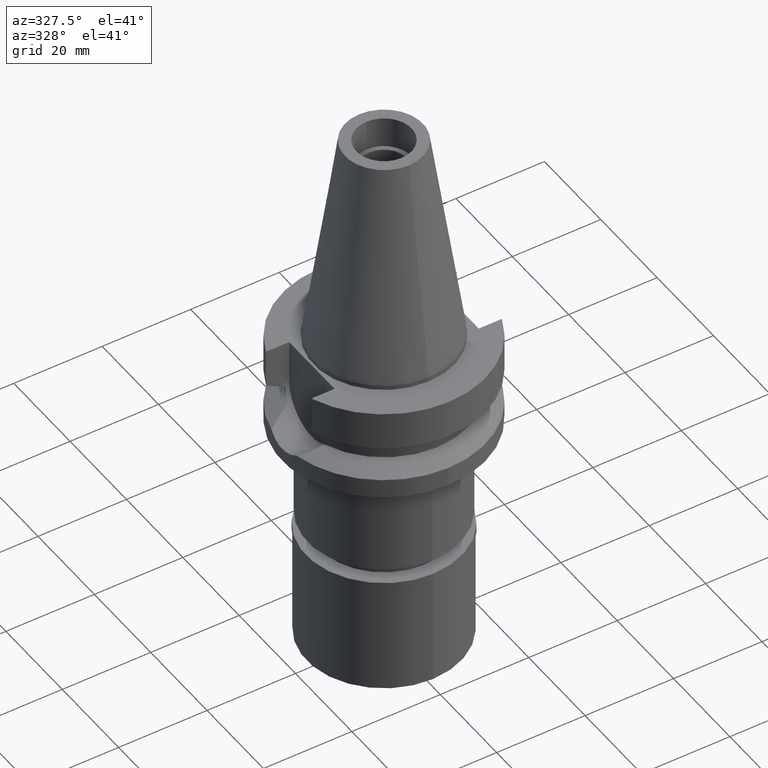
[diagram: clean part render]
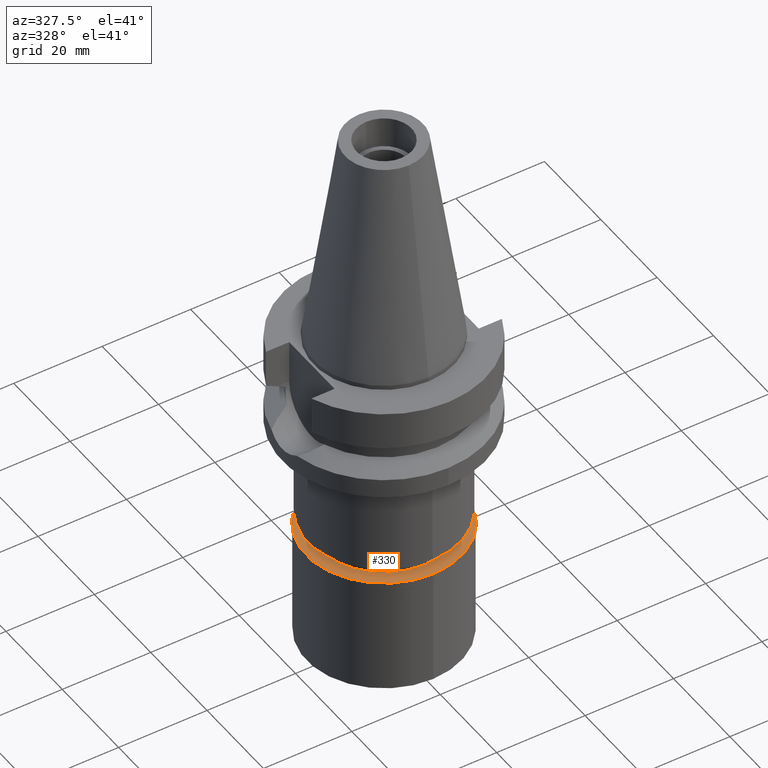
[diagram: same view with one face highlighted and labeled with its STEP entity id]
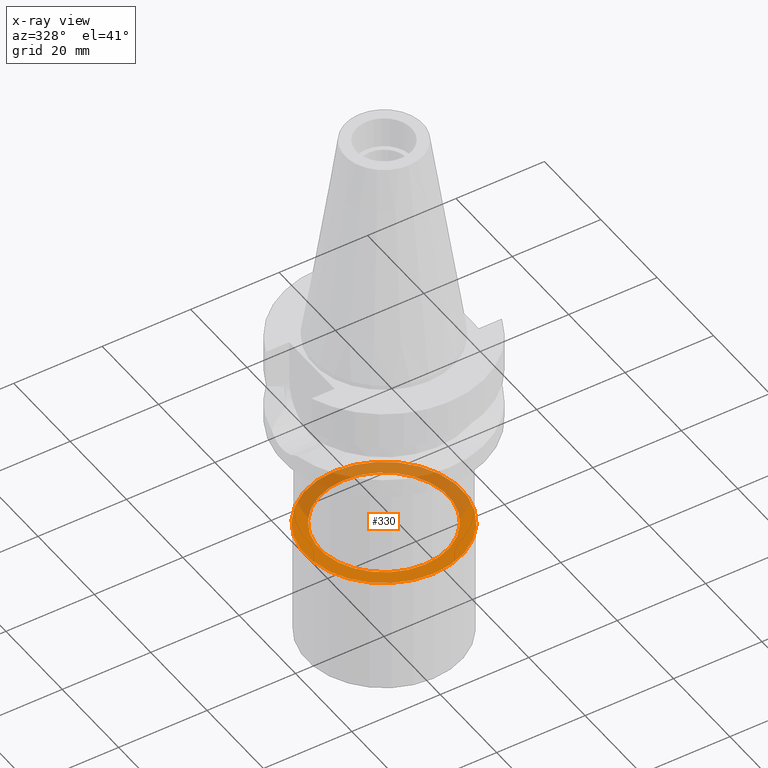
[diagram: x-ray of the same camera — body ghosted, the highlighted face saturated]
A machine part, auxiliary view. The second image highlights one B-rep face of the part: STEP entity #330.
The next image is the same camera in x-ray: the body ghosted, the highlighted face saturated — about 43% of this face is hidden behind the body in this view.
In plain terms, the highlighted planar face has unit normal (0, 0, -1).
Its self-contained STEP definition (entity closure, byte-faithful):
#113 = CARTESIAN_POINT ( 'NONE',  ( 0.0000000000000000000, 0.0000000000000000000, 0.0000000000000000000 ) ) ;
#177 = CARTESIAN_POINT ( 'NONE',  ( 0.0000000000000000000, -14.50000000000000000, 0.0000000000000000000 ) ) ;
#194 = FACE_BOUND ( 'NONE', #2177, .T. ) ;
#243 = DIRECTION ( 'NONE',  ( 0.0000000000000000000, 0.0000000000000000000, -1.000000000000000000 ) ) ;
#280 = AXIS2_PLACEMENT_3D ( 'NONE', #1407, #243, #926 ) ;
#328 = ORIENTED_EDGE ( 'NONE', *, *, #798, .F. ) ;
#330 = ADVANCED_FACE ( 'NONE', ( #2773, #194 ), #2538, .F. ) ;
#350 = CARTESIAN_POINT ( 'NONE',  ( 0.0000000000000000000, -17.64999999999999858, 0.0000000000000000000 ) ) ;
#394 = DIRECTION ( 'NONE',  ( 0.0000000000000000000, 0.0000000000000000000, 1.000000000000000000 ) ) ;
#435 = DIRECTION ( 'NONE',  ( 0.0000000000000000000, 0.0000000000000000000, -1.000000000000000000 ) ) ;
#688 = VERTEX_POINT ( 'NONE', #2706 ) ;
#798 = EDGE_CURVE ( 'NONE', #2563, #1265, #1203, .T. ) ;
#841 = DIRECTION ( 'NONE',  ( 0.0000000000000000000, -1.000000000000000000, 0.0000000000000000000 ) ) ;
#912 = DIRECTION ( 'NONE',  ( 0.0000000000000000000, -1.000000000000000000, 0.0000000000000000000 ) ) ;
#926 = DIRECTION ( 'NONE',  ( 0.0000000000000000000, -1.000000000000000000, 0.0000000000000000000 ) ) ;
#928 = DIRECTION ( 'NONE',  ( 0.0000000000000000000, 0.0000000000000000000, 1.000000000000000000 ) ) ;
#1147 = CARTESIAN_POINT ( 'NONE',  ( 0.0000000000000000000, 0.0000000000000000000, 0.0000000000000000000 ) ) ;
#1203 = CIRCLE ( 'NONE', #2853, 17.64999999999999858 ) ;
#1265 = VERTEX_POINT ( 'NONE', #350 ) ;
#1388 = CARTESIAN_POINT ( 'NONE',  ( 0.0000000000000000000, 0.0000000000000000000, 0.0000000000000000000 ) ) ;
#1401 = CIRCLE ( 'NONE', #2958, 14.50000000000000000 ) ;
#1403 = CIRCLE ( 'NONE', #1686, 17.64999999999999858 ) ;
#1407 = CARTESIAN_POINT ( 'NONE',  ( 0.0000000000000000000, 0.0000000000000000000, 0.0000000000000000000 ) ) ;
#1468 = EDGE_CURVE ( 'NONE', #688, #2354, #1401, .T. ) ;
#1500 = AXIS2_PLACEMENT_3D ( 'NONE', #2457, #394, #841 ) ;
#1528 = DIRECTION ( 'NONE',  ( 0.0000000000000000000, 0.0000000000000000000, -1.000000000000000000 ) ) ;
#1686 = AXIS2_PLACEMENT_3D ( 'NONE', #1388, #435, #912 ) ;
#1801 = EDGE_CURVE ( 'NONE', #1265, #2563, #1403, .T. ) ;
#2070 = DIRECTION ( 'NONE',  ( 0.0000000000000000000, 1.000000000000000000, 0.0000000000000000000 ) ) ;
#2101 = ORIENTED_EDGE ( 'NONE', *, *, #1468, .F. ) ;
#2121 = ORIENTED_EDGE ( 'NONE', *, *, #2723, .F. ) ;
#2177 = EDGE_LOOP ( 'NONE', ( #2101, #2121 ) ) ;
#2354 = VERTEX_POINT ( 'NONE', #177 ) ;
#2397 = DIRECTION ( 'NONE',  ( 0.0000000000000000000, 1.000000000000000000, 0.0000000000000000000 ) ) ;
#2457 = CARTESIAN_POINT ( 'NONE',  ( 0.0000000000000000000, 0.0000000000000000000, 0.0000000000000000000 ) ) ;
#2478 = CIRCLE ( 'NONE', #1500, 14.50000000000000000 ) ;
#2484 = ORIENTED_EDGE ( 'NONE', *, *, #1801, .F. ) ;
#2538 = PLANE ( 'NONE',  #280 ) ;
#2563 = VERTEX_POINT ( 'NONE', #2838 ) ;
#2575 = EDGE_LOOP ( 'NONE', ( #328, #2484 ) ) ;
#2706 = CARTESIAN_POINT ( 'NONE',  ( 0.0000000000000000000, 14.50000000000000000, 0.0000000000000000000 ) ) ;
#2723 = EDGE_CURVE ( 'NONE', #2354, #688, #2478, .T. ) ;
#2773 = FACE_OUTER_BOUND ( 'NONE', #2575, .T. ) ;
#2838 = CARTESIAN_POINT ( 'NONE',  ( 0.0000000000000000000, 17.64999999999999858, 0.0000000000000000000 ) ) ;
#2853 = AXIS2_PLACEMENT_3D ( 'NONE', #113, #1528, #2397 ) ;
#2958 = AXIS2_PLACEMENT_3D ( 'NONE', #1147, #928, #2070 ) ;